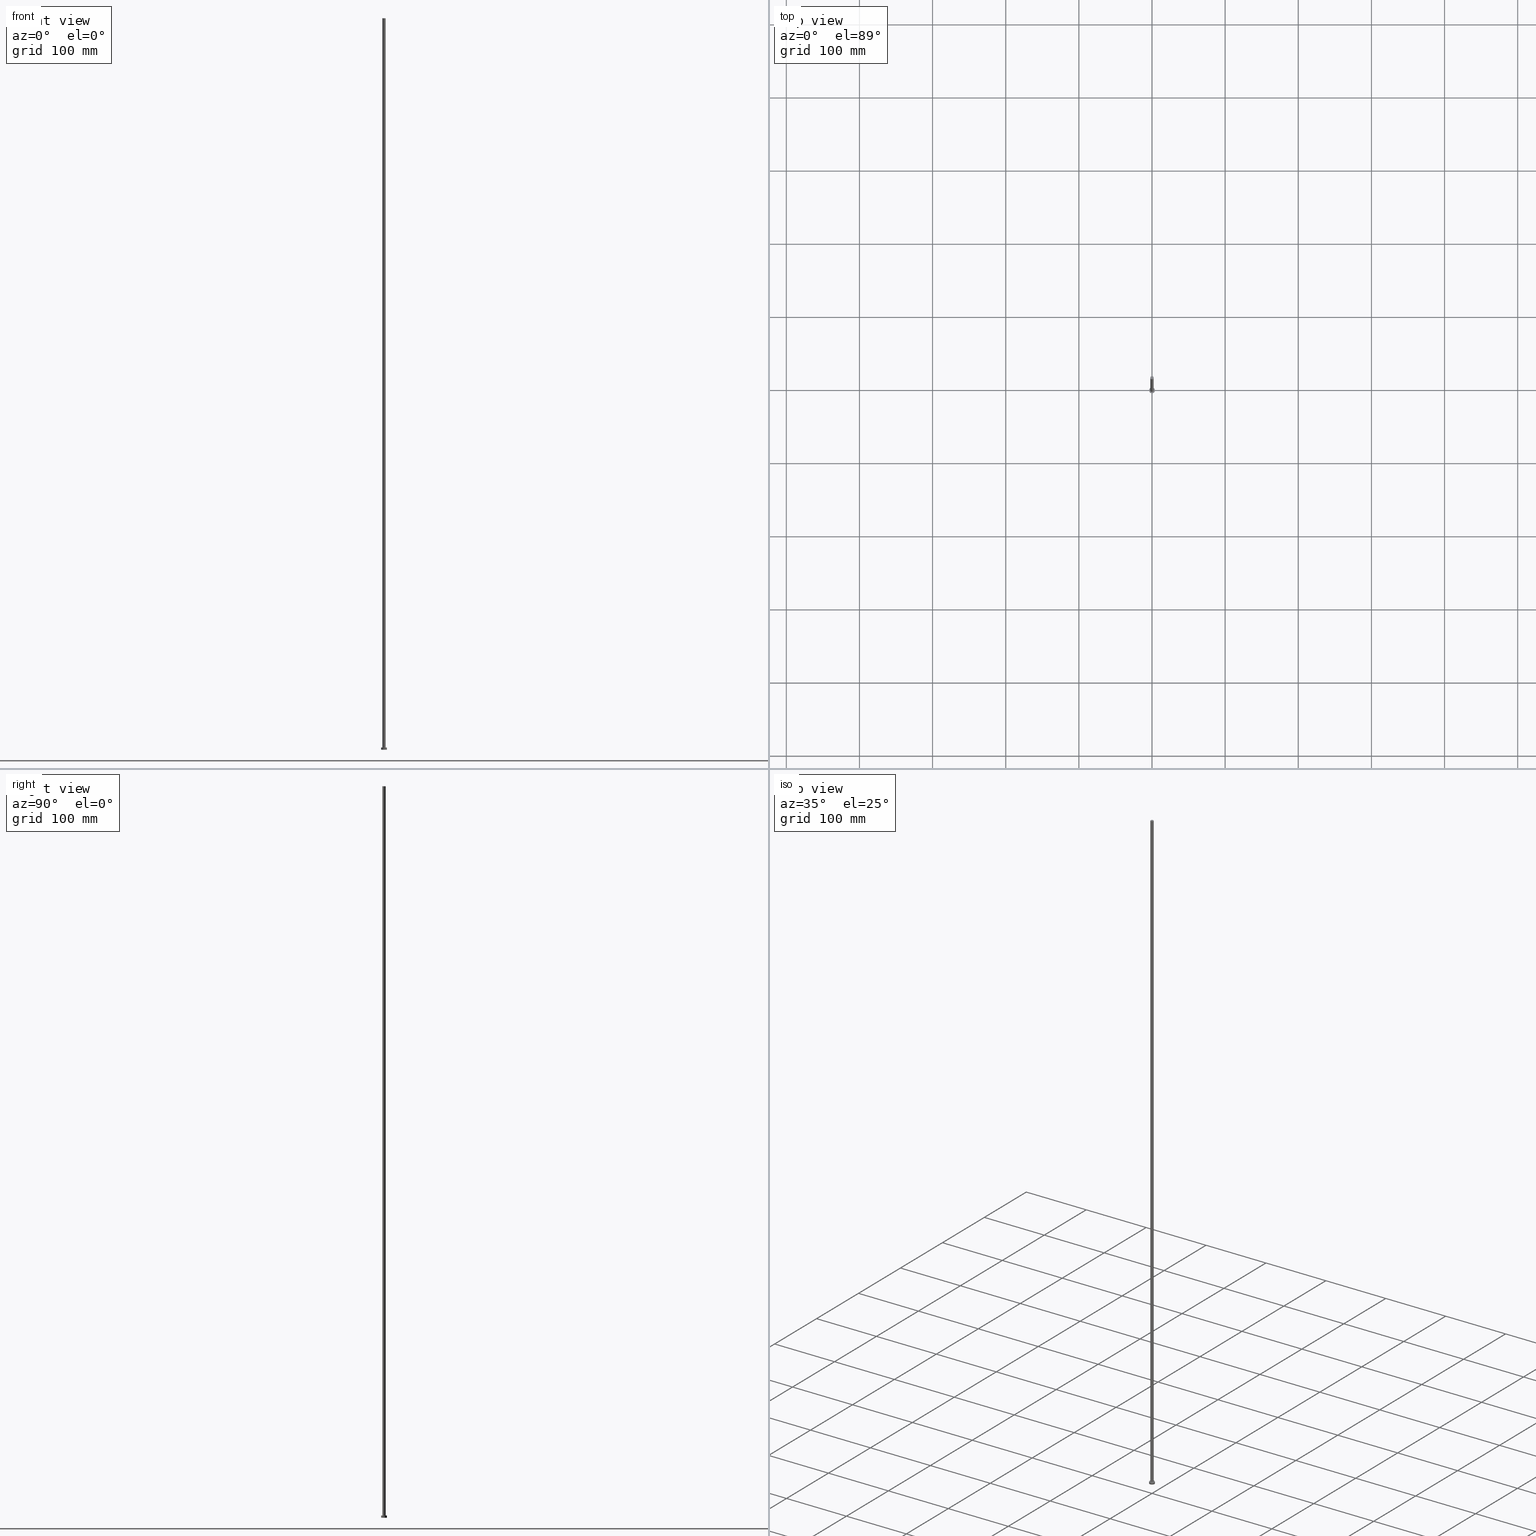
[diagram: canonical four-view strip — front | top / right | iso, engineering-drawing reading convention]
A machine part, canonical four-view strip (front | top / right | iso — engineering-drawing reading convention). The complete STEP part file that produces these views, byte-faithful:
ISO-10303-21;
HEADER;
FILE_DESCRIPTION (( 'STEP AP203' ),
    '1' );
FILE_NAME ('8196.STEP',
    '2023-02-12T12:31:50',
    ( '' ),
    ( '' ),
    'SwSTEP 2.0',
    'SolidWorks 2019',
    '' );
FILE_SCHEMA (( 'CONFIG_CONTROL_DESIGN' ));
ENDSEC;

DATA;
#1 = APPROVAL_STATUS ( 'not_yet_approved' ) ;
#2 = CARTESIAN_POINT ( 'NONE',  ( 0.000000000000000000, 0.000000000000000000, 3.000000000000000000 ) ) ;
#3 = CC_DESIGN_PERSON_AND_ORGANIZATION_ASSIGNMENT ( #20, #65, ( #156 ) ) ;
#4 = APPROVAL_STATUS ( 'not_yet_approved' ) ;
#5 = CARTESIAN_POINT ( 'NONE',  ( 0.000000000000000000, 0.000000000000000000, 3.000000000000000000 ) ) ;
#6 = EDGE_LOOP ( 'NONE', ( #72, #110, #232, #31 ) ) ;
#7 = CIRCLE ( 'NONE', #29, 2.250000000000000000 ) ;
#8 = DIRECTION ( 'NONE',  ( 1.000000000000000000, 0.000000000000000000, -0.000000000000000000 ) ) ;
#9 = CC_DESIGN_PERSON_AND_ORGANIZATION_ASSIGNMENT ( #255, #26, ( #77 ) ) ;
#10 = DIRECTION ( 'NONE',  ( 1.000000000000000000, 0.000000000000000000, 0.000000000000000000 ) ) ;
#11 = ORIENTED_EDGE ( 'NONE', *, *, #98, .T. ) ;
#12 = ORIENTED_EDGE ( 'NONE', *, *, #79, .T. ) ;
#13 = DESIGN_CONTEXT ( 'detailed design', #129, 'design' ) ;
#14 = DIRECTION ( 'NONE',  ( 1.000000000000000000, 0.000000000000000000, -0.000000000000000000 ) ) ;
#15 = CYLINDRICAL_SURFACE ( 'NONE', #238, 4.000000000000000000 ) ;
#16 = CLOSED_SHELL ( 'NONE', ( #174, #37, #47, #246, #21, #162, #201 ) ) ;
#17 = SHAPE_DEFINITION_REPRESENTATION ( #134, #40 ) ;
#18 = APPROVAL_ROLE ( '' ) ;
#19 = LINE ( 'NONE', #61, #193 ) ;
#20 = PERSON_AND_ORGANIZATION ( #67, #101 ) ;
#21 = ADVANCED_FACE ( 'NONE', ( #168 ), #176, .F. ) ;
#22 = VECTOR ( 'NONE', #205, 1000.000000000000000 ) ;
#23 = FACE_OUTER_BOUND ( 'NONE', #6, .T. ) ;
#24 = PERSON_AND_ORGANIZATION_ROLE ( 'creator' ) ;
#25 = CARTESIAN_POINT ( 'NONE',  ( -2.250000000000000000, 0.000000000000000000, 1000.000000000000000 ) ) ;
#26 = PERSON_AND_ORGANIZATION_ROLE ( 'design_owner' ) ;
#27 = DIRECTION ( 'NONE',  ( 1.000000000000000000, 0.000000000000000000, 0.000000000000000000 ) ) ;
#28 = COORDINATED_UNIVERSAL_TIME_OFFSET ( 1, 0, .AHEAD. ) ;
#29 = AXIS2_PLACEMENT_3D ( 'NONE', #34, #242, #10 ) ;
#30 = MECHANICAL_CONTEXT ( 'NONE', #166, 'mechanical' ) ;
#31 = ORIENTED_EDGE ( 'NONE', *, *, #58, .T. ) ;
#32 = CARTESIAN_POINT ( 'NONE',  ( 0.000000000000000000, 0.000000000000000000, 3.000000000000000000 ) ) ;
#33 = LOCAL_TIME ( 13, 31, 50.00000000000000000, #28 ) ;
#34 = CARTESIAN_POINT ( 'NONE',  ( 0.000000000000000000, 0.000000000000000000, 1000.000000000000000 ) ) ;
#35 = DIRECTION ( 'NONE',  ( 0.000000000000000000, 0.000000000000000000, 1.000000000000000000 ) ) ;
#36 = EDGE_LOOP ( 'NONE', ( #100, #152 ) ) ;
#37 = ADVANCED_FACE ( 'NONE', ( #73 ), #227, .T. ) ;
#38 = AXIS2_PLACEMENT_3D ( 'NONE', #2, #137, #46 ) ;
#39 = DIRECTION ( 'NONE',  ( -1.000000000000000000, 0.000000000000000000, 0.000000000000000000 ) ) ;
#40 = ADVANCED_BREP_SHAPE_REPRESENTATION ( '8196', ( #169, #60 ), #95 ) ;
#41 = CARTESIAN_POINT ( 'NONE',  ( 0.000000000000000000, 0.000000000000000000, 0.000000000000000000 ) ) ;
#42 = LINE ( 'NONE', #136, #185 ) ;
#43 = CC_DESIGN_APPROVAL ( #229, ( #50 ) ) ;
#44 = CIRCLE ( 'NONE', #38, 4.000000000000000000 ) ;
#45 = DIRECTION ( 'NONE',  ( -1.000000000000000000, 0.000000000000000000, 0.000000000000000000 ) ) ;
#46 = DIRECTION ( 'NONE',  ( 1.000000000000000000, 0.000000000000000000, 0.000000000000000000 ) ) ;
#47 = ADVANCED_FACE ( 'NONE', ( #116 ), #15, .T. ) ;
#48 = VERTEX_POINT ( 'NONE', #235 ) ;
#49 = DIRECTION ( 'NONE',  ( 1.000000000000000000, 0.000000000000000000, 0.000000000000000000 ) ) ;
#50 = PRODUCT_DEFINITION ( 'NEZN�M�', '', #156, #13 ) ;
#51 = DIRECTION ( 'NONE',  ( 1.000000000000000000, 0.000000000000000000, -0.000000000000000000 ) ) ;
#52 = EDGE_LOOP ( 'NONE', ( #190, #173 ) ) ;
#53 = AXIS2_PLACEMENT_3D ( 'NONE', #104, #80, #237 ) ;
#54 = CARTESIAN_POINT ( 'NONE',  ( -4.000000000000000000, 0.000000000000000000, 3.000000000000000000 ) ) ;
#55 = DIRECTION ( 'NONE',  ( 1.000000000000000000, 0.000000000000000000, 0.000000000000000000 ) ) ;
#56 = APPROVAL ( #1, 'NEUR�EN�' ) ;
#57 = AXIS2_PLACEMENT_3D ( 'NONE', #177, #115, #14 ) ;
#58 = EDGE_CURVE ( 'NONE', #48, #240, #194, .T. ) ;
#59 = DIRECTION ( 'NONE',  ( -0.000000000000000000, -0.000000000000000000, -1.000000000000000000 ) ) ;
#60 = AXIS2_PLACEMENT_3D ( 'NONE', #41, #118, #234 ) ;
#61 = CARTESIAN_POINT ( 'NONE',  ( 2.250000000000000000, 2.755455298081544285E-16, 1000.000000000000000 ) ) ;
#62 = EDGE_LOOP ( 'NONE', ( #68, #209 ) ) ;
#63 = CALENDAR_DATE ( 2023, 12, 2 ) ;
#64 = DIRECTION ( 'NONE',  ( 1.000000000000000000, 0.000000000000000000, 0.000000000000000000 ) ) ;
#65 = PERSON_AND_ORGANIZATION_ROLE ( 'creator' ) ;
#66 = APPROVAL_ROLE ( '' ) ;
#67 = PERSON ( 'NEUR�EN�', 'NEUR�EN�', 'NEUR�EN�', ('NEUR�EN�'), ('NEUR�EN�'), ('NEUR�EN�') ) ;
#68 = ORIENTED_EDGE ( 'NONE', *, *, #58, .F. ) ;
#69 = CIRCLE ( 'NONE', #212, 4.000000000000000000 ) ;
#70 = EDGE_LOOP ( 'NONE', ( #142, #12, #192, #182 ) ) ;
#71 = FACE_BOUND ( 'NONE', #62, .T. ) ;
#72 = ORIENTED_EDGE ( 'NONE', *, *, #79, .F. ) ;
#73 = FACE_OUTER_BOUND ( 'NONE', #155, .T. ) ;
#74 = CC_DESIGN_DATE_AND_TIME_ASSIGNMENT ( #133, #215, ( #50 ) ) ;
#75 = SECURITY_CLASSIFICATION ( '', '', #239 ) ;
#76 = CARTESIAN_POINT ( 'NONE',  ( 0.000000000000000000, 0.000000000000000000, 3.000000000000000000 ) ) ;
#77 = PRODUCT ( '8196', '8196', '', ( #30 ) ) ;
#78 = PERSON_AND_ORGANIZATION ( #67, #101 ) ;
#79 = EDGE_CURVE ( 'NONE', #170, #240, #19, .T. ) ;
#80 = DIRECTION ( 'NONE',  ( -0.000000000000000000, -0.000000000000000000, -1.000000000000000000 ) ) ;
#81 = LINE ( 'NONE', #161, #157 ) ;
#82 = ORIENTED_EDGE ( 'NONE', *, *, #96, .T. ) ;
#83 = DATE_AND_TIME ( #210, #183 ) ;
#84 = COORDINATED_UNIVERSAL_TIME_OFFSET ( 1, 0, .AHEAD. ) ;
#85 = DATE_AND_TIME ( #195, #125 ) ;
#86 = PRODUCT_RELATED_PRODUCT_CATEGORY ( 'detail', '', ( #77 ) ) ;
#87 = PERSON_AND_ORGANIZATION ( #67, #101 ) ;
#88 = DIRECTION ( 'NONE',  ( 0.000000000000000000, 0.000000000000000000, 1.000000000000000000 ) ) ;
#89 = CC_DESIGN_DATE_AND_TIME_ASSIGNMENT ( #231, #163, ( #75 ) ) ;
#90 = CARTESIAN_POINT ( 'NONE',  ( 4.000000000000000000, 4.898587196589412829E-16, 3.000000000000000000 ) ) ;
#91 = AXIS2_PLACEMENT_3D ( 'NONE', #250, #221, #248 ) ;
#92 = ORIENTED_EDGE ( 'NONE', *, *, #207, .F. ) ;
#93 = DIRECTION ( 'NONE',  ( 0.000000000000000000, 0.000000000000000000, 1.000000000000000000 ) ) ;
#94 = ORIENTED_EDGE ( 'NONE', *, *, #254, .T. ) ;
#95 =( GEOMETRIC_REPRESENTATION_CONTEXT ( 3 ) GLOBAL_UNCERTAINTY_ASSIGNED_CONTEXT ( ( #154 ) ) GLOBAL_UNIT_ASSIGNED_CONTEXT ( ( #225, #113, #111 ) ) REPRESENTATION_CONTEXT ( 'NONE', 'WORKASPACE' ) );
#96 = EDGE_CURVE ( 'NONE', #170, #150, #206, .T. ) ;
#97 = AXIS2_PLACEMENT_3D ( 'NONE', #214, #59, #39 ) ;
#98 = EDGE_CURVE ( 'NONE', #203, #164, #81, .T. ) ;
#99 = DIRECTION ( 'NONE',  ( -1.000000000000000000, 0.000000000000000000, 0.000000000000000000 ) ) ;
#100 = ORIENTED_EDGE ( 'NONE', *, *, #117, .T. ) ;
#101 = ORGANIZATION ( 'NEUR�EN�', 'NEUR�EN�', '' ) ;
#102 = CYLINDRICAL_SURFACE ( 'NONE', #228, 2.250000000000000000 ) ;
#103 = CALENDAR_DATE ( 2023, 12, 2 ) ;
#104 = CARTESIAN_POINT ( 'NONE',  ( 0.000000000000000000, 0.000000000000000000, 1000.000000000000000 ) ) ;
#105 = PERSON_AND_ORGANIZATION ( #67, #101 ) ;
#106 = AXIS2_PLACEMENT_3D ( 'NONE', #244, #153, #51 ) ;
#107 = APPROVAL_ROLE ( '' ) ;
#108 = VERTEX_POINT ( 'NONE', #122 ) ;
#109 = LINE ( 'NONE', #179, #22 ) ;
#110 = ORIENTED_EDGE ( 'NONE', *, *, #254, .F. ) ;
#111 =( NAMED_UNIT ( * ) SI_UNIT ( $, .STERADIAN. ) SOLID_ANGLE_UNIT ( ) );
#112 = APPROVAL_PERSON_ORGANIZATION ( #146, #56, #66 ) ;
#113 =( NAMED_UNIT ( * ) PLANE_ANGLE_UNIT ( ) SI_UNIT ( $, .RADIAN. ) );
#114 = ORIENTED_EDGE ( 'NONE', *, *, #139, .T. ) ;
#115 = DIRECTION ( 'NONE',  ( 0.000000000000000000, 0.000000000000000000, 1.000000000000000000 ) ) ;
#116 = FACE_OUTER_BOUND ( 'NONE', #224, .T. ) ;
#117 = EDGE_CURVE ( 'NONE', #243, #203, #44, .T. ) ;
#118 = DIRECTION ( 'NONE',  ( 0.000000000000000000, 0.000000000000000000, 1.000000000000000000 ) ) ;
#119 = DATE_AND_TIME ( #123, #198 ) ;
#120 = AXIS2_PLACEMENT_3D ( 'NONE', #32, #93, #49 ) ;
#121 = EDGE_CURVE ( 'NONE', #243, #108, #42, .T. ) ;
#122 = CARTESIAN_POINT ( 'NONE',  ( -4.000000000000000000, 0.000000000000000000, 0.000000000000000000 ) ) ;
#123 = CALENDAR_DATE ( 2023, 12, 2 ) ;
#124 = CYLINDRICAL_SURFACE ( 'NONE', #53, 2.250000000000000000 ) ;
#125 = LOCAL_TIME ( 13, 31, 50.00000000000000000, #138 ) ;
#126 = ORIENTED_EDGE ( 'NONE', *, *, #121, .F. ) ;
#127 = AXIS2_PLACEMENT_3D ( 'NONE', #141, #180, #64 ) ;
#128 = EDGE_LOOP ( 'NONE', ( #94, #82 ) ) ;
#129 = APPLICATION_CONTEXT ( 'configuration controlled 3d designs of mechanical parts and assemblies' ) ;
#130 = FACE_OUTER_BOUND ( 'NONE', #128, .T. ) ;
#131 = ORIENTED_EDGE ( 'NONE', *, *, #178, .T. ) ;
#132 = COORDINATED_UNIVERSAL_TIME_OFFSET ( 1, 0, .AHEAD. ) ;
#133 = DATE_AND_TIME ( #63, #241 ) ;
#134 = PRODUCT_DEFINITION_SHAPE ( 'NONE', 'NONE',  #50 ) ;
#135 = CIRCLE ( 'NONE', #120, 4.000000000000000000 ) ;
#136 = CARTESIAN_POINT ( 'NONE',  ( -4.000000000000000000, 0.000000000000000000, 3.000000000000000000 ) ) ;
#137 = DIRECTION ( 'NONE',  ( 0.000000000000000000, 0.000000000000000000, 1.000000000000000000 ) ) ;
#138 = COORDINATED_UNIVERSAL_TIME_OFFSET ( 1, 0, .AHEAD. ) ;
#139 = EDGE_CURVE ( 'NONE', #164, #108, #69, .T. ) ;
#140 = PERSON_AND_ORGANIZATION ( #67, #101 ) ;
#141 = CARTESIAN_POINT ( 'NONE',  ( 0.000000000000000000, 0.000000000000000000, 3.000000000000000000 ) ) ;
#142 = ORIENTED_EDGE ( 'NONE', *, *, #96, .F. ) ;
#143 = CIRCLE ( 'NONE', #204, 4.000000000000000000 ) ;
#144 = CC_DESIGN_APPROVAL ( #56, ( #75 ) ) ;
#145 = DIRECTION ( 'NONE',  ( -0.000000000000000000, -0.000000000000000000, -1.000000000000000000 ) ) ;
#146 = PERSON_AND_ORGANIZATION ( #67, #101 ) ;
#147 = APPLICATION_PROTOCOL_DEFINITION ( 'international standard', 'config_control_design', 1994, #129 ) ;
#148 = DIRECTION ( 'NONE',  ( 1.000000000000000000, 0.000000000000000000, 0.000000000000000000 ) ) ;
#149 = PLANE ( 'NONE',  #106 ) ;
#150 = VERTEX_POINT ( 'NONE', #25 ) ;
#151 = PLANE ( 'NONE',  #160 ) ;
#152 = ORIENTED_EDGE ( 'NONE', *, *, #207, .T. ) ;
#153 = DIRECTION ( 'NONE',  ( 0.000000000000000000, 0.000000000000000000, 1.000000000000000000 ) ) ;
#154 = UNCERTAINTY_MEASURE_WITH_UNIT (LENGTH_MEASURE( 1.000000000000000082E-05 ), #225, 'distance_accuracy_value', 'NONE');
#155 = EDGE_LOOP ( 'NONE', ( #92, #11, #114, #126 ) ) ;
#156 = PRODUCT_DEFINITION_FORMATION_WITH_SPECIFIED_SOURCE ( 'LIBOVOLN�', '', #77, .NOT_KNOWN. ) ;
#157 = VECTOR ( 'NONE', #145, 1000.000000000000000 ) ;
#158 = DIRECTION ( 'NONE',  ( -0.000000000000000000, -0.000000000000000000, -1.000000000000000000 ) ) ;
#159 = CARTESIAN_POINT ( 'NONE',  ( 0.000000000000000000, 0.000000000000000000, 0.000000000000000000 ) ) ;
#160 = AXIS2_PLACEMENT_3D ( 'NONE', #208, #35, #8 ) ;
#161 = CARTESIAN_POINT ( 'NONE',  ( 4.000000000000000000, 4.898587196589412829E-16, 3.000000000000000000 ) ) ;
#162 = ADVANCED_FACE ( 'NONE', ( #23 ), #102, .T. ) ;
#163 = DATE_TIME_ROLE ( 'classification_date' ) ;
#164 = VERTEX_POINT ( 'NONE', #253 ) ;
#165 = APPROVAL_DATE_TIME ( #85, #56 ) ;
#166 = APPLICATION_CONTEXT ( 'configuration controlled 3d designs of mechanical parts and assemblies' ) ;
#167 = FACE_OUTER_BOUND ( 'NONE', #70, .T. ) ;
#168 = FACE_OUTER_BOUND ( 'NONE', #52, .T. ) ;
#169 = MANIFOLD_SOLID_BREP ( 'P�idat vysunut�m3', #16 ) ;
#170 = VERTEX_POINT ( 'NONE', #217 ) ;
#171 = CARTESIAN_POINT ( 'NONE',  ( 2.250000000000000000, 2.755455298081544285E-16, 3.000000000000000000 ) ) ;
#172 = ORIENTED_EDGE ( 'NONE', *, *, #121, .T. ) ;
#173 = ORIENTED_EDGE ( 'NONE', *, *, #139, .F. ) ;
#174 = ADVANCED_FACE ( 'NONE', ( #167 ), #124, .T. ) ;
#175 = CIRCLE ( 'NONE', #247, 2.250000000000000000 ) ;
#176 = PLANE ( 'NONE',  #57 ) ;
#177 = CARTESIAN_POINT ( 'NONE',  ( 0.000000000000000000, 0.000000000000000000, 0.000000000000000000 ) ) ;
#178 = EDGE_CURVE ( 'NONE', #108, #164, #143, .T. ) ;
#179 = CARTESIAN_POINT ( 'NONE',  ( -2.250000000000000000, 0.000000000000000000, 1000.000000000000000 ) ) ;
#180 = DIRECTION ( 'NONE',  ( 0.000000000000000000, 0.000000000000000000, 1.000000000000000000 ) ) ;
#181 = CC_DESIGN_PERSON_AND_ORGANIZATION_ASSIGNMENT ( #140, #24, ( #50 ) ) ;
#182 = ORIENTED_EDGE ( 'NONE', *, *, #188, .F. ) ;
#183 = LOCAL_TIME ( 13, 31, 50.00000000000000000, #132 ) ;
#184 = CARTESIAN_POINT ( 'NONE',  ( 0.000000000000000000, 0.000000000000000000, 1000.000000000000000 ) ) ;
#185 = VECTOR ( 'NONE', #219, 1000.000000000000000 ) ;
#186 = DIRECTION ( 'NONE',  ( -0.000000000000000000, -0.000000000000000000, -1.000000000000000000 ) ) ;
#187 = CC_DESIGN_PERSON_AND_ORGANIZATION_ASSIGNMENT ( #87, #202, ( #156 ) ) ;
#188 = EDGE_CURVE ( 'NONE', #150, #48, #109, .T. ) ;
#189 = CC_DESIGN_APPROVAL ( #213, ( #156 ) ) ;
#190 = ORIENTED_EDGE ( 'NONE', *, *, #178, .F. ) ;
#191 = CC_DESIGN_PERSON_AND_ORGANIZATION_ASSIGNMENT ( #249, #222, ( #75 ) ) ;
#192 = ORIENTED_EDGE ( 'NONE', *, *, #196, .T. ) ;
#193 = VECTOR ( 'NONE', #197, 1000.000000000000000 ) ;
#194 = CIRCLE ( 'NONE', #127, 2.250000000000000000 ) ;
#195 = CALENDAR_DATE ( 2023, 12, 2 ) ;
#196 = EDGE_CURVE ( 'NONE', #240, #48, #175, .T. ) ;
#197 = DIRECTION ( 'NONE',  ( -0.000000000000000000, -0.000000000000000000, -1.000000000000000000 ) ) ;
#198 = LOCAL_TIME ( 13, 31, 50.00000000000000000, #218 ) ;
#199 = CARTESIAN_POINT ( 'NONE',  ( 0.000000000000000000, 0.000000000000000000, 0.000000000000000000 ) ) ;
#200 = DIRECTION ( 'NONE',  ( 0.000000000000000000, 0.000000000000000000, 1.000000000000000000 ) ) ;
#201 = ADVANCED_FACE ( 'NONE', ( #130 ), #151, .T. ) ;
#202 = PERSON_AND_ORGANIZATION_ROLE ( 'design_supplier' ) ;
#203 = VERTEX_POINT ( 'NONE', #90 ) ;
#204 = AXIS2_PLACEMENT_3D ( 'NONE', #159, #230, #55 ) ;
#205 = DIRECTION ( 'NONE',  ( -0.000000000000000000, -0.000000000000000000, -1.000000000000000000 ) ) ;
#206 = CIRCLE ( 'NONE', #91, 2.250000000000000000 ) ;
#207 = EDGE_CURVE ( 'NONE', #203, #243, #135, .T. ) ;
#208 = CARTESIAN_POINT ( 'NONE',  ( 0.000000000000000000, 0.000000000000000000, 1000.000000000000000 ) ) ;
#209 = ORIENTED_EDGE ( 'NONE', *, *, #196, .F. ) ;
#210 = CALENDAR_DATE ( 2023, 12, 2 ) ;
#211 = CC_DESIGN_SECURITY_CLASSIFICATION ( #75, ( #156 ) ) ;
#212 = AXIS2_PLACEMENT_3D ( 'NONE', #199, #200, #27 ) ;
#213 = APPROVAL ( #216, 'NEUR�EN�' ) ;
#214 = CARTESIAN_POINT ( 'NONE',  ( 0.000000000000000000, 0.000000000000000000, 3.000000000000000000 ) ) ;
#215 = DATE_TIME_ROLE ( 'creation_date' ) ;
#216 = APPROVAL_STATUS ( 'not_yet_approved' ) ;
#217 = CARTESIAN_POINT ( 'NONE',  ( 2.250000000000000000, 2.755455298081544285E-16, 1000.000000000000000 ) ) ;
#218 = COORDINATED_UNIVERSAL_TIME_OFFSET ( 1, 0, .AHEAD. ) ;
#219 = DIRECTION ( 'NONE',  ( -0.000000000000000000, -0.000000000000000000, -1.000000000000000000 ) ) ;
#220 = APPLICATION_PROTOCOL_DEFINITION ( 'international standard', 'config_control_design', 1994, #166 ) ;
#221 = DIRECTION ( 'NONE',  ( 0.000000000000000000, 0.000000000000000000, 1.000000000000000000 ) ) ;
#222 = PERSON_AND_ORGANIZATION_ROLE ( 'classification_officer' ) ;
#223 = ORIENTED_EDGE ( 'NONE', *, *, #117, .F. ) ;
#224 = EDGE_LOOP ( 'NONE', ( #252, #223, #172, #131 ) ) ;
#225 =( LENGTH_UNIT ( ) NAMED_UNIT ( * ) SI_UNIT ( .MILLI., .METRE. ) );
#226 = APPROVAL_PERSON_ORGANIZATION ( #78, #213, #18 ) ;
#227 = CYLINDRICAL_SURFACE ( 'NONE', #97, 4.000000000000000000 ) ;
#228 = AXIS2_PLACEMENT_3D ( 'NONE', #184, #186, #45 ) ;
#229 = APPROVAL ( #4, 'NEUR�EN�' ) ;
#230 = DIRECTION ( 'NONE',  ( 0.000000000000000000, 0.000000000000000000, 1.000000000000000000 ) ) ;
#231 = DATE_AND_TIME ( #103, #33 ) ;
#232 = ORIENTED_EDGE ( 'NONE', *, *, #188, .T. ) ;
#233 = APPROVAL_DATE_TIME ( #119, #229 ) ;
#234 = DIRECTION ( 'NONE',  ( 1.000000000000000000, 0.000000000000000000, 0.000000000000000000 ) ) ;
#235 = CARTESIAN_POINT ( 'NONE',  ( -2.250000000000000000, 0.000000000000000000, 3.000000000000000000 ) ) ;
#236 = APPROVAL_PERSON_ORGANIZATION ( #105, #229, #107 ) ;
#237 = DIRECTION ( 'NONE',  ( -1.000000000000000000, 0.000000000000000000, 0.000000000000000000 ) ) ;
#238 = AXIS2_PLACEMENT_3D ( 'NONE', #76, #158, #99 ) ;
#239 = SECURITY_CLASSIFICATION_LEVEL ( 'unclassified' ) ;
#240 = VERTEX_POINT ( 'NONE', #171 ) ;
#241 = LOCAL_TIME ( 13, 31, 50.00000000000000000, #84 ) ;
#242 = DIRECTION ( 'NONE',  ( 0.000000000000000000, 0.000000000000000000, 1.000000000000000000 ) ) ;
#243 = VERTEX_POINT ( 'NONE', #54 ) ;
#244 = CARTESIAN_POINT ( 'NONE',  ( 0.000000000000000000, 0.000000000000000000, 3.000000000000000000 ) ) ;
#245 = FACE_OUTER_BOUND ( 'NONE', #36, .T. ) ;
#246 = ADVANCED_FACE ( 'NONE', ( #71, #245 ), #149, .T. ) ;
#247 = AXIS2_PLACEMENT_3D ( 'NONE', #5, #88, #148 ) ;
#248 = DIRECTION ( 'NONE',  ( 1.000000000000000000, 0.000000000000000000, 0.000000000000000000 ) ) ;
#249 = PERSON_AND_ORGANIZATION ( #67, #101 ) ;
#250 = CARTESIAN_POINT ( 'NONE',  ( 0.000000000000000000, 0.000000000000000000, 1000.000000000000000 ) ) ;
#251 = APPROVAL_DATE_TIME ( #83, #213 ) ;
#252 = ORIENTED_EDGE ( 'NONE', *, *, #98, .F. ) ;
#253 = CARTESIAN_POINT ( 'NONE',  ( 4.000000000000000000, 4.898587196589412829E-16, 0.000000000000000000 ) ) ;
#254 = EDGE_CURVE ( 'NONE', #150, #170, #7, .T. ) ;
#255 = PERSON_AND_ORGANIZATION ( #67, #101 ) ;
ENDSEC;
END-ISO-10303-21;
